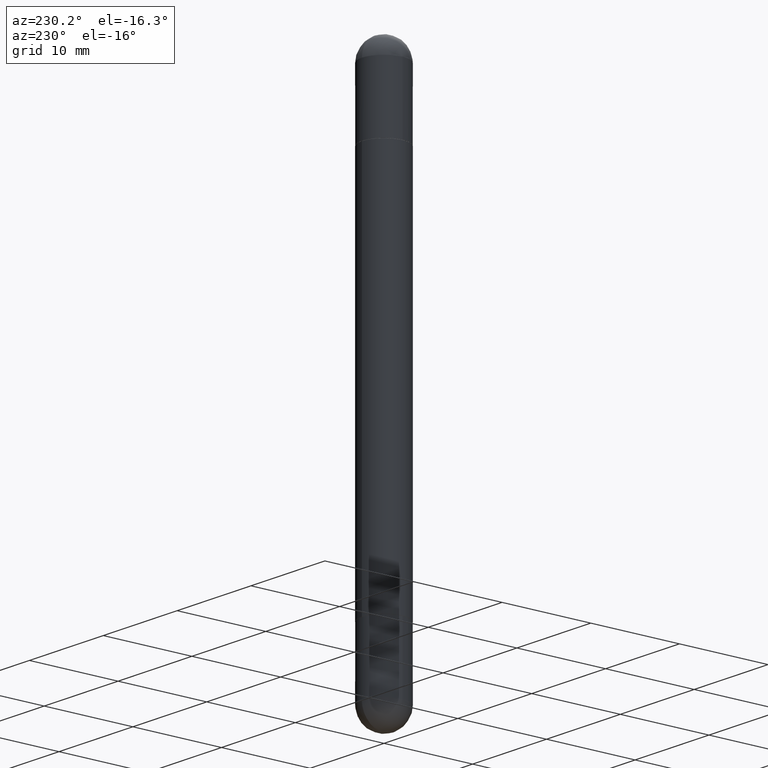
[diagram: clean part render]
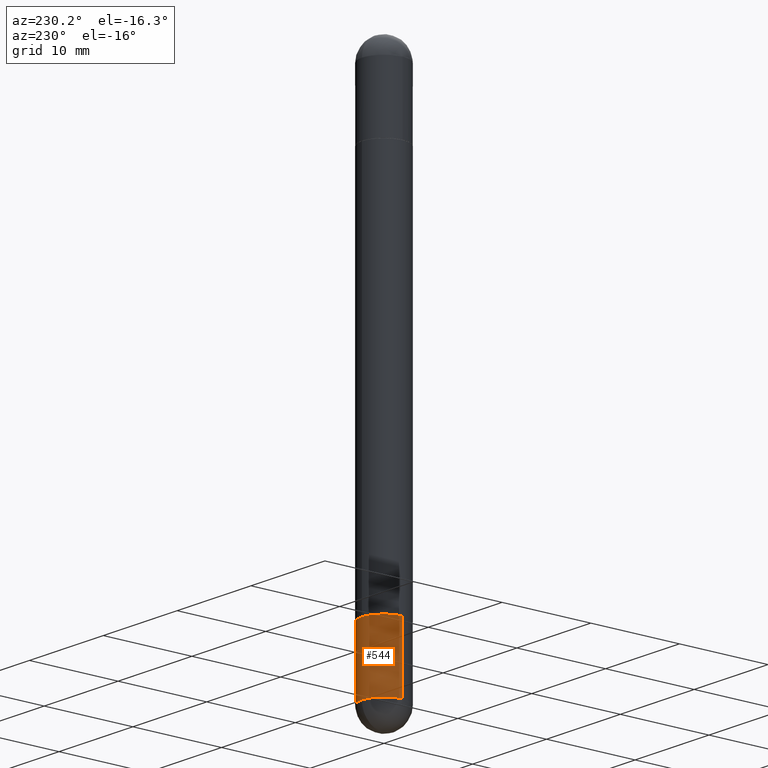
[diagram: same view with one face highlighted and labeled with its STEP entity id]
A machine part, auxiliary view. The second image highlights one B-rep face of the part: STEP entity #544.
In plain terms, the highlighted cylindrical surface (edge-blend (fillet) strip) has radius 2.5006 mm, axis along (-0, 0, 1).
Its self-contained STEP definition (entity closure, byte-faithful):
#42 = DIRECTION ( 'NONE',  ( 1.000000000000000000, -6.982962677686265922E-15, 0.000000000000000000 ) ) ;
#60 = CIRCLE ( 'NONE', #518, 0.09844999999999999585 ) ;
#62 = VERTEX_POINT ( 'NONE', #270 ) ;
#66 = DIRECTION ( 'NONE',  ( 1.000000000000000000, -6.982962677686273810E-15, 0.000000000000000000 ) ) ;
#88 = CARTESIAN_POINT ( 'NONE',  ( -0.09844999999999999585, -7.101225570921008942E-15, -2.086600000000000232 ) ) ;
#92 = FACE_OUTER_BOUND ( 'NONE', #358, .T. ) ;
#94 = VERTEX_POINT ( 'NONE', #304 ) ;
#107 = CARTESIAN_POINT ( 'NONE',  ( 0.09845000000000000973, -8.488227569895042768E-15, -2.381850000000000467 ) ) ;
#118 = DIRECTION ( 'NONE',  ( -2.445468806185136597E-29, 3.491481338843145583E-15, 1.000000000000000000 ) ) ;
#131 = CARTESIAN_POINT ( 'NONE',  ( 6.874726756182700483E-16, 0.09844999999999154427, -2.381850000000000911 ) ) ;
#159 = DIRECTION ( 'NONE',  ( -2.445468806185136597E-29, 3.491481338843145583E-15, 1.000000000000000000 ) ) ;
#175 = DIRECTION ( 'NONE',  ( -2.445468806185136877E-29, 3.491481338843145188E-15, 1.000000000000000000 ) ) ;
#200 = DIRECTION ( 'NONE',  ( -2.445468806185136597E-29, 3.491481338843145583E-15, 1.000000000000000000 ) ) ;
#241 = ORIENTED_EDGE ( 'NONE', *, *, #713, .F. ) ;
#247 = LINE ( 'NONE', #744, #467 ) ;
#270 = CARTESIAN_POINT ( 'NONE',  ( -0.09845000000000000973, -7.101225570921009731E-15, -2.381850000000000467 ) ) ;
#300 = CARTESIAN_POINT ( 'NONE',  ( 0.09845000000000000973, -6.874726756182130531E-16, 4.800596035771099214E-30 ) ) ;
#304 = CARTESIAN_POINT ( 'NONE',  ( 0.09844999999999999585, -7.972797637248321554E-15, -2.086600000000000232 ) ) ;
#308 = VERTEX_POINT ( 'NONE', #131 ) ;
#312 = EDGE_CURVE ( 'NONE', #633, #308, #321, .T. ) ;
#319 = ORIENTED_EDGE ( 'NONE', *, *, #683, .T. ) ;
#321 = CIRCLE ( 'NONE', #796, 0.09845000000000000973 ) ;
#330 = ORIENTED_EDGE ( 'NONE', *, *, #729, .T. ) ;
#343 = CARTESIAN_POINT ( 'NONE',  ( 0.000000000000000000, 0.000000000000000000, 0.000000000000000000 ) ) ;
#358 = EDGE_LOOP ( 'NONE', ( #319, #330, #241, #470, #593 ) ) ;
#365 = VECTOR ( 'NONE', #175, 39.37007874015748143 ) ;
#383 = CARTESIAN_POINT ( 'NONE',  ( 5.824739876012068780E-29, -8.316184826923546689E-15, -2.381850000000000467 ) ) ;
#437 = VERTEX_POINT ( 'NONE', #88 ) ;
#467 = VECTOR ( 'NONE', #554, 39.37007874015748143 ) ;
#470 = ORIENTED_EDGE ( 'NONE', *, *, #613, .F. ) ;
#518 = AXIS2_PLACEMENT_3D ( 'NONE', #727, #159, #42 ) ;
#544 = ADVANCED_FACE ( 'NONE', ( #92 ), #768, .T. ) ;
#548 = AXIS2_PLACEMENT_3D ( 'NONE', #785, #680, #736 ) ;
#554 = DIRECTION ( 'NONE',  ( -2.445468806185136877E-29, 3.491481338843145188E-15, 1.000000000000000000 ) ) ;
#593 = ORIENTED_EDGE ( 'NONE', *, *, #312, .T. ) ;
#613 = EDGE_CURVE ( 'NONE', #633, #94, #618, .T. ) ;
#618 = LINE ( 'NONE', #300, #365 ) ;
#633 = VERTEX_POINT ( 'NONE', #107 ) ;
#655 = CIRCLE ( 'NONE', #548, 0.09845000000000000973 ) ;
#680 = DIRECTION ( 'NONE',  ( -2.445468806185136597E-29, 3.491481338843145583E-15, 1.000000000000000000 ) ) ;
#683 = EDGE_CURVE ( 'NONE', #308, #62, #655, .T. ) ;
#696 = AXIS2_PLACEMENT_3D ( 'NONE', #343, #200, #711 ) ;
#711 = DIRECTION ( 'NONE',  ( 1.000000000000000000, -6.982962677686266711E-15, 4.876176775795935793E-29 ) ) ;
#713 = EDGE_CURVE ( 'NONE', #94, #437, #60, .T. ) ;
#727 = CARTESIAN_POINT ( 'NONE',  ( 5.102715210985907397E-29, -7.285324961630108994E-15, -2.086600000000000232 ) ) ;
#729 = EDGE_CURVE ( 'NONE', #62, #437, #247, .T. ) ;
#736 = DIRECTION ( 'NONE',  ( 1.000000000000000000, -6.982962677686273810E-15, 0.000000000000000000 ) ) ;
#744 = CARTESIAN_POINT ( 'NONE',  ( -0.09845000000000000973, 6.995293233558187021E-16, -4.842691596355954742E-30 ) ) ;
#768 = CYLINDRICAL_SURFACE ( 'NONE', #696, 0.09845000000000000973 ) ;
#785 = CARTESIAN_POINT ( 'NONE',  ( 5.824739876012068780E-29, -8.316184826923546689E-15, -2.381850000000000467 ) ) ;
#796 = AXIS2_PLACEMENT_3D ( 'NONE', #383, #118, #66 ) ;